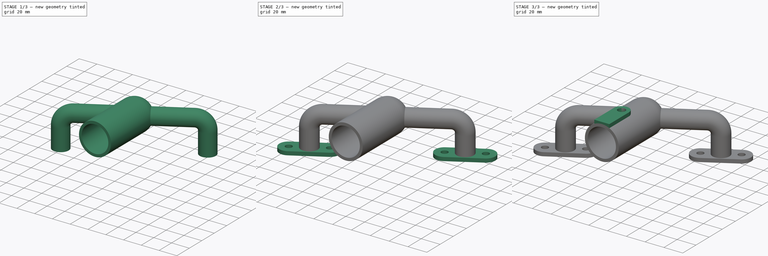
[diagram: build sequence overview — one tinted view per stage of 3, left to right]
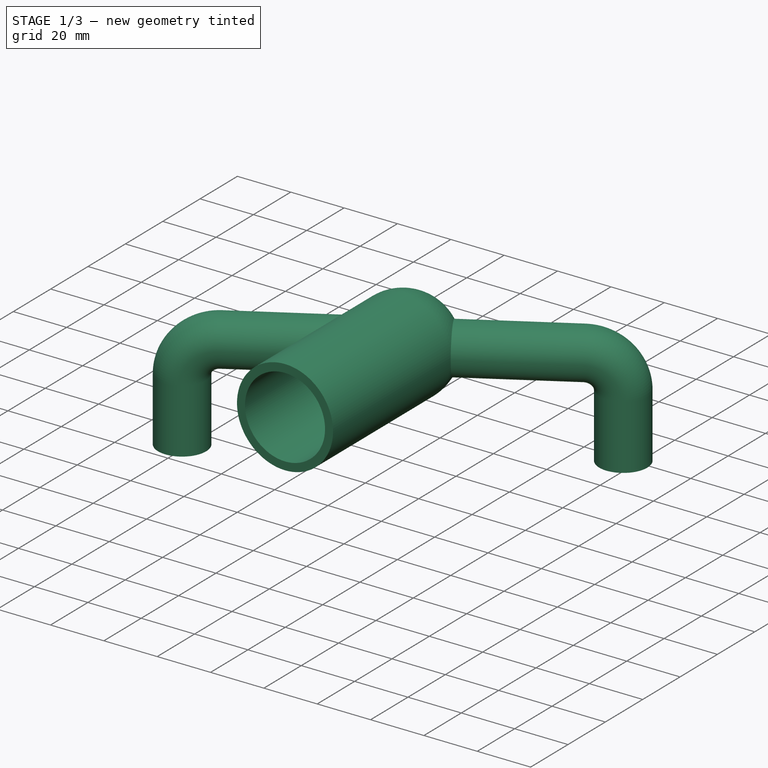
[diagram: stage 1 of 3 — iso view after this stage's code; geometry added in this stage tinted green]
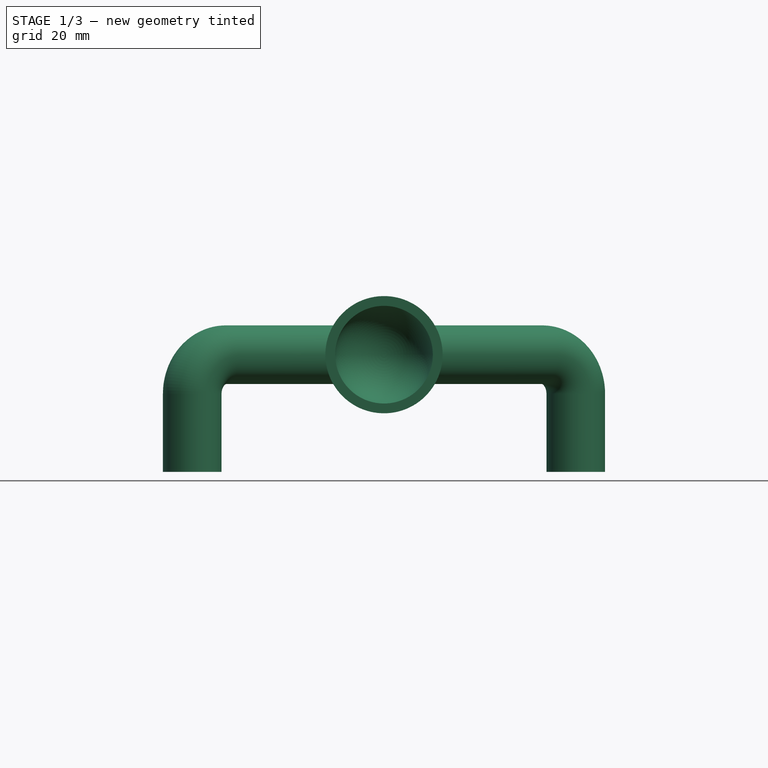
[diagram: stage 1 of 3 — front view after this stage's code; geometry added in this stage tinted green]
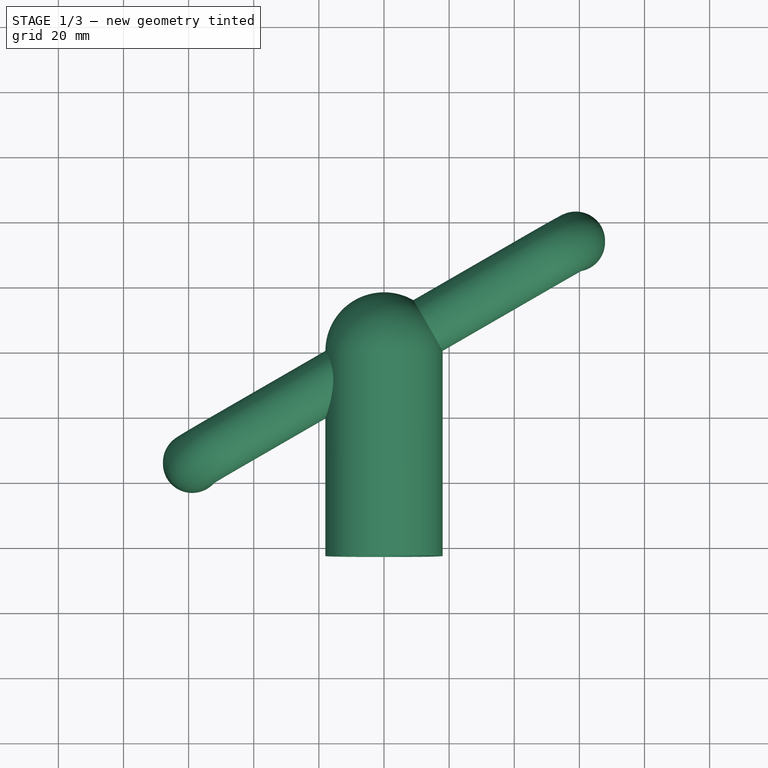
[diagram: stage 1 of 3 — top view after this stage's code; geometry added in this stage tinted green]
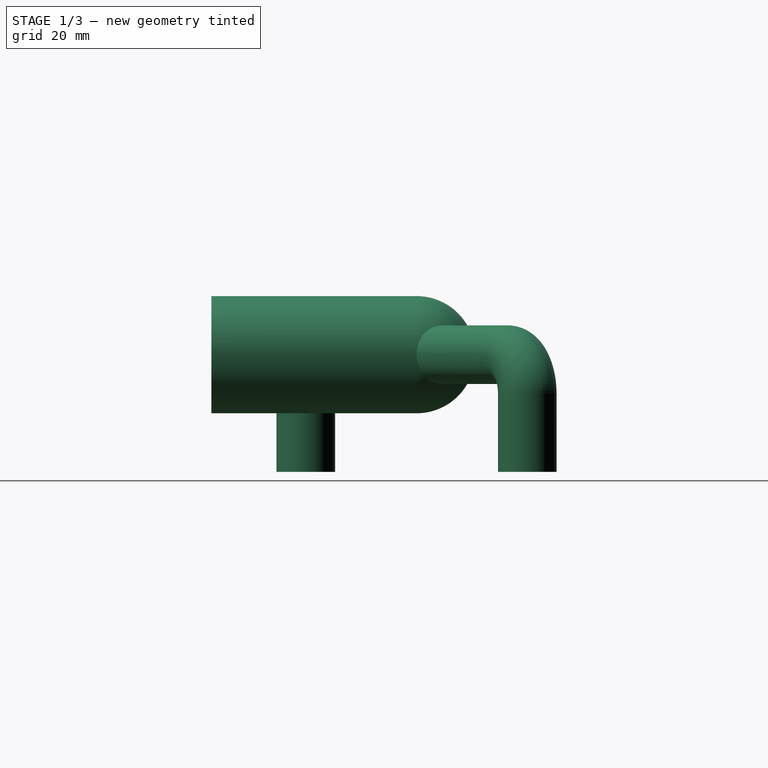
[diagram: stage 1 of 3 — right view after this stage's code; geometry added in this stage tinted green]
FCSTD DOCUMENT  (FreeCAD 0.21R33771 (Git))
Label: ex22
License: All rights reserved
LicenseURL: https://en.wikipedia.org/wiki/All_rights_reserved
objects: Sketcher::SketchObject×8, PartDesign::Pad×2, PartDesign::Plane×2, PartDesign::AdditivePipe×1, PartDesign::Revolution×1, PartDesign::Groove×1, PartDesign::Mirrored×1, PartDesign::SubtractivePipe×1, PartDesign::Pocket×1, PartDesign::Body×1
note: 26 computed .brp shape members not serialized (recipe doc carries the construction recipe); baked Part::Feature solids carry a one-line shape summary decoded from their .brp

FEATURE [Sketcher::SketchObject] Sketch
  AttachmentOffset = pos=(0,0,0) rot=(0,1,0;0.523599rad)
  FullyConstrained = true
  MapMode = 5
  Placement = pos=(0,0,0) rot=(0.935113,0.250563,0.250563;1.63783rad)
  Support = -> [XZ_Plane]
  sketch-geometry (5):
    g0: LineSegment StartX=-68 StartY=-36 StartZ=0 EndX=-68 EndY=-12 EndZ=0
    g1: LineSegment StartX=-56 StartY=0 StartZ=0 EndX=56 EndY=0 EndZ=0
    g2: LineSegment StartX=68 StartY=-12 StartZ=0 EndX=68 EndY=-36 EndZ=0
    g3: ArcOfCircle CenterX=-56 CenterY=-12 CenterZ=0 NormalX=0 NormalY=0 NormalZ=1 AngleXU=0 Radius=12 StartAngle=1.5708 EndAngle=3.14159
    g4: ArcOfCircle CenterX=56 CenterY=-12 CenterZ=0 NormalX=0 NormalY=0 NormalZ=1 AngleXU=0 Radius=12 StartAngle=0 EndAngle=1.5708
  constraints (13):
    c: Vertical(g0)
    c: Vertical(g2)
    c: Tangent(g0,g3) = 1.5708
    c: Tangent(g1,g3) = 1.5708
    c: Tangent(g1,g4) = 1.5708
    c: Tangent(g2,g4) = 1.5708
    c: Equal(g4,g3)
    c: Diameter(g4) = 24
    c: Tangent(g1,g-1)
    c: Equal(g0,g2)
    c: Symmetric(g1,g1,g-2)
    c: Distance(g0,g2) = 136
    c: DistanceY(g0,g1) = 36
FEATURE [Sketcher::SketchObject] Sketch001
  AttachmentOffset = pos=(0,0,0) rot=(0,1,0;-1.0472rad)
  FullyConstrained = true
  MapMode = 5
  Placement = pos=(0,0,0) rot=(-0.774597,0.447214,0.447214;4.45971rad)
  Support = -> [XZ_Plane]
  sketch-geometry (1):
    g0: Circle CenterX=0 CenterY=0 CenterZ=0 NormalX=0 NormalY=0 NormalZ=1 AngleXU=0 Radius=9
  constraints (2):
    c: Coincident(g0,g-1)
    c: Diameter(g0) = 18
FEATURE [PartDesign::AdditivePipe] AdditivePipe
  AuxilleryCurvelinear = true
  AuxillerySpineTangent = false
  Binormal = (0,0,0)
  Mode = 0
  Placement = pos=(0,0,0) rot=(1,0,0;1.5708rad)
  Profile = -> Sketch001
  Spine = -> Sketch
  SpineTangent = false
  Transformation = 0
  Transition = 0
FEATURE [Sketcher::SketchObject] Sketch002
  FullyConstrained = true
  MapMode = 5
  Support = -> [XY_Plane]
  sketch-geometry (4):
    g0: ArcOfCircle CenterX=0 CenterY=0 CenterZ=0 NormalX=0 NormalY=0 NormalZ=1 AngleXU=0 Radius=18 StartAngle=0 EndAngle=1.5708
    g1: LineSegment StartX=18 StartY=0 StartZ=0 EndX=18 EndY=-63 EndZ=0
    g2: LineSegment StartX=1.1e-15 StartY=18 StartZ=0 EndX=0 EndY=-63 EndZ=0
    g3: LineSegment StartX=0 StartY=-63 StartZ=0 EndX=18 EndY=-63 EndZ=0
  constraints (12):
    c: PointOnObject(g0,g-2)
    c: Coincident(g1,g0)
    c: Vertical(g1)
    c: Coincident(g0,g-1)
    c: PointOnObject(g0,g-1)
    c: Coincident(g0,g2)
    c: Coincident(g2,g3)
    c: Coincident(g3,g1)
    c: Horizontal(g3)
    c: DistanceX(g3,g3) = 18
    c: PointOnObject(g2,g-2)
    c: DistanceY(g2,g2) = 81
FEATURE [PartDesign::Revolution] Revolution
  Angle = 360
  Axis = (0,1,0)
  Base = (0,0,0)
  BaseFeature = -> AdditivePipe
  Placement = pos=(0,0,0) rot=(1,0,0;1.5708rad)
  Profile = -> Sketch002
  ReferenceAxis = -> Sketch002 [V_Axis]
  Reversed = true
FEATURE [Sketcher::SketchObject] Sketch003
  FullyConstrained = true
  MapMode = 5
  Support = -> [XY_Plane]
  sketch-geometry (4):
    g0: ArcOfCircle CenterX=0 CenterY=0 CenterZ=0 NormalX=0 NormalY=0 NormalZ=1 AngleXU=0 Radius=15 StartAngle=0 EndAngle=1.5708
    g1: LineSegment StartX=15 StartY=0 StartZ=0 EndX=15 EndY=-63 EndZ=0
    g2: LineSegment StartX=15 StartY=-63 StartZ=0 EndX=0 EndY=-63 EndZ=0
    g3: LineSegment StartX=0 StartY=-63 StartZ=0 EndX=9e-16 EndY=15 EndZ=0
  constraints (11):
    c: Coincident(g0,g-1)
    c: PointOnObject(g0,g-2)
    c: PointOnObject(g0,g-1)
    c: Tangent(g0,g1) = 1.5708
    c: Coincident(g1,g2)
    c: PointOnObject(g2,g-2)
    c: Horizontal(g2)
    c: Coincident(g2,g3)
    c: Coincident(g3,g0)
    c: DistanceX(g2,g2) = 15
    c: DistanceY(g3,g3) = 78
FEATURE [PartDesign::Groove] Groove
  Angle = 360
  Axis = (0,1,0)
  Base = (0,0,0)
  BaseFeature = -> Revolution
  Placement = pos=(0,0,0) rot=(1,0,0;1.5708rad)
  Profile = -> Sketch003
  ReferenceAxis = -> Sketch003 [V_Axis]
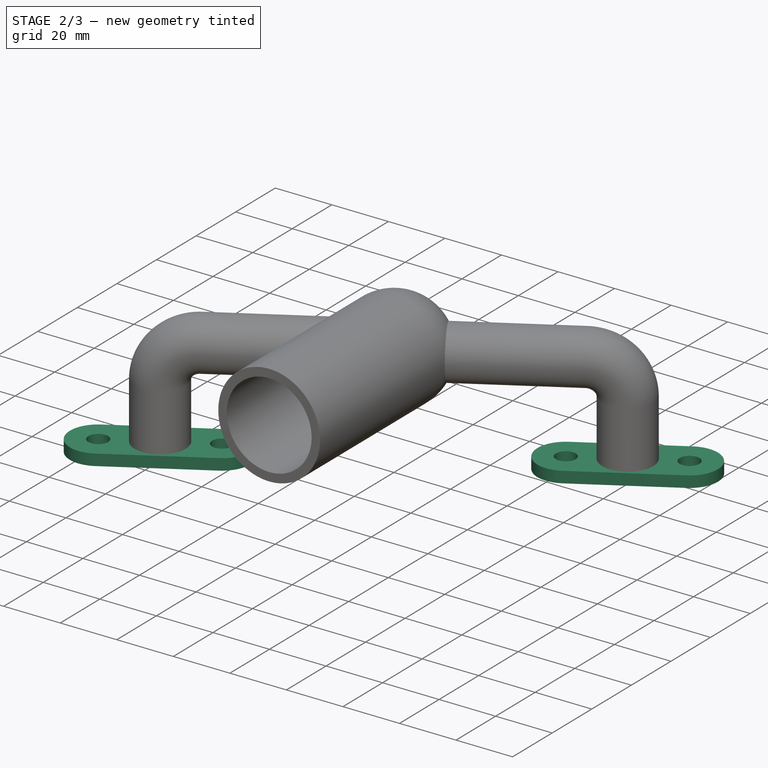
[diagram: stage 2 of 3 — iso view after this stage's code; geometry added in this stage tinted green]
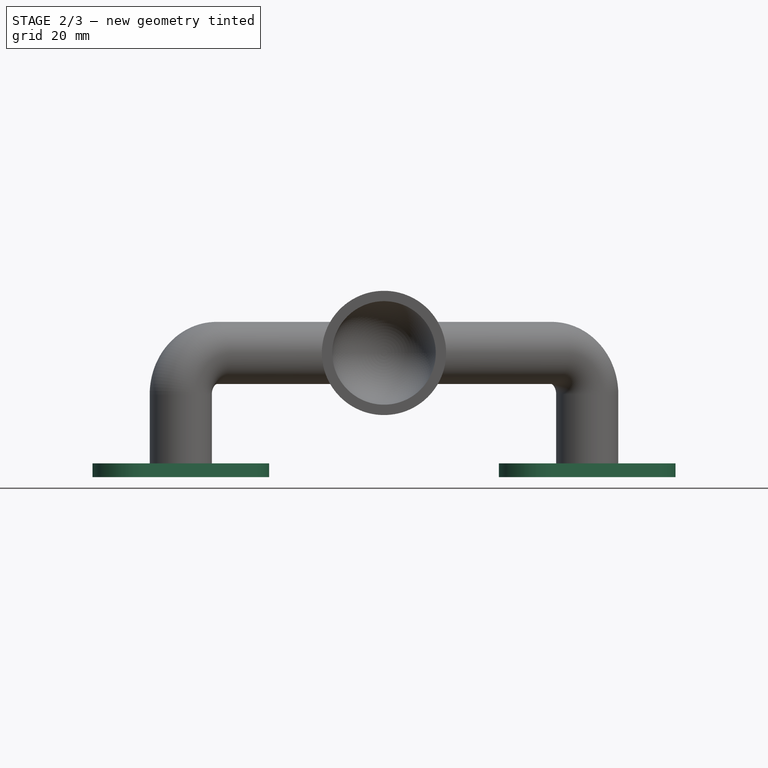
[diagram: stage 2 of 3 — front view after this stage's code; geometry added in this stage tinted green]
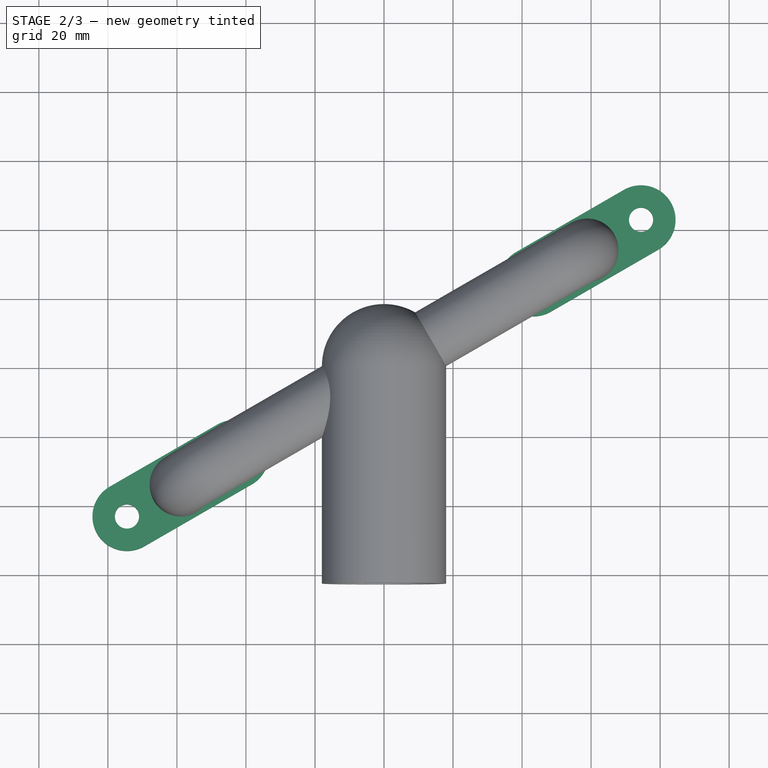
[diagram: stage 2 of 3 — top view after this stage's code; geometry added in this stage tinted green]
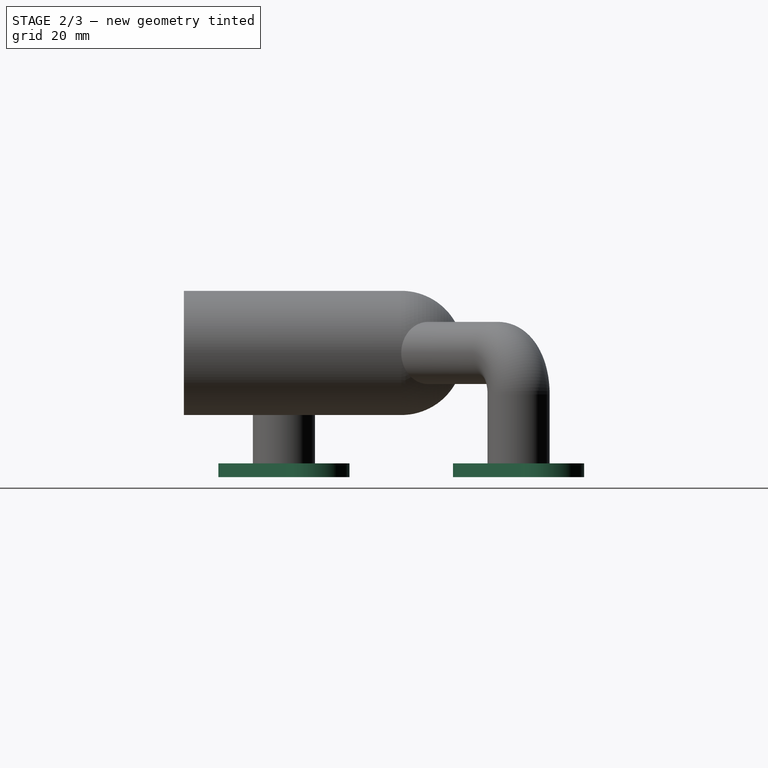
[diagram: stage 2 of 3 — right view after this stage's code; geometry added in this stage tinted green]
FEATURE [Sketcher::SketchObject] Sketch004
  ExternalGeometry = -> [Groove]
  FullyConstrained = false
  MapMode = 5
  Placement = pos=(0,8e-15,-36) rot=(1,0,0;3.14159rad)
  Support = -> [Groove]
  sketch-geometry (7):
    g0: ArcOfCircle CenterX=-74.4782 CenterY=43 CenterZ=0 NormalX=0 NormalY=0 NormalZ=1 AngleXU=0 Radius=10 StartAngle=1.0472 EndAngle=4.18879
    g1: ArcOfCircle CenterX=-43.3013 CenterY=25 CenterZ=0 NormalX=0 NormalY=0 NormalZ=1 AngleXU=0 Radius=10 StartAngle=4.18879 EndAngle=7.33038
    g2: LineSegment StartX=-79.4782 StartY=34.3397 StartZ=0 EndX=-48.3013 EndY=16.3397 EndZ=0
    g3: LineSegment StartX=-38.3013 StartY=33.6603 StartZ=0 EndX=-69.4782 EndY=51.6603 EndZ=0
    g4: LineSegment StartX=-103.673 StartY=59.8556 StartZ=0 EndX=78.4646 EndY=-45.3016 EndZ=0
    g5: Circle CenterX=-74.4782 CenterY=43 CenterZ=0 NormalX=0 NormalY=0 NormalZ=1 AngleXU=0 Radius=3.5
    g6: Circle CenterX=-43.3013 CenterY=25 CenterZ=0 NormalX=0 NormalY=0 NormalZ=1 AngleXU=0 Radius=3.5
  constraints (15):
    c: Tangent(g0,g2) = -1.5708
    c: Tangent(g2,g1) = -1.5708
    c: Tangent(g1,g3) = -1.5708
    c: Tangent(g3,g0) = -1.5708
    c: Equal(g0,g1)
    c: PointOnObject(g0,g4)
    c: PointOnObject(g1,g4)
    c: PointOnObject(g-3,g4)
    c: Symmetric(g0,g1,g-4)
    c: Distance(g0,g1) = 36
    c: Distance(g0,g0) = 20
    c: Coincident(g5,g0)
    c: Coincident(g6,g1)
    c: Equal(g6,g5)
    c: Diameter(g5) = 7
FEATURE [PartDesign::Pad] Pad
  BaseFeature = -> Groove
  Direction = (0,2e-16,-1)
  Length = 4
  Length2 = 10
  Placement = pos=(0,0,0) rot=(1,0,0;1.5708rad)
  Profile = -> Sketch004
  ReferenceAxis = -> Sketch004 [N_Axis]
  Reversed = true
  Type = 0
FEATURE [PartDesign::Plane] DatumPlane
  Length = 206.138
  MapMode = 2
  Placement = pos=(0,0,0) rot=(0.774597,-0.447214,-0.447214;1.82348rad)
  ResizeMode = 0
  Support = -> [Sketch001]
  Width = 82.2403
FEATURE [PartDesign::Mirrored] Mirrored
  BaseFeature = -> Pad
  MirrorPlane = -> DatumPlane
  Originals = -> [Pad]
  Placement = pos=(0,0,0) rot=(1,0,0;1.5708rad)
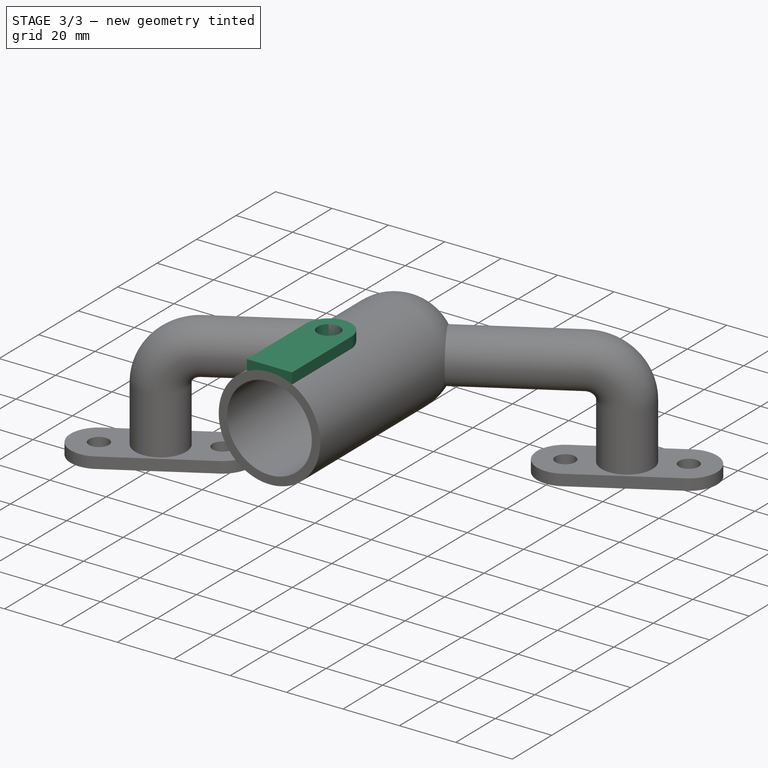
[diagram: stage 3 of 3 — iso view after this stage's code; geometry added in this stage tinted green]
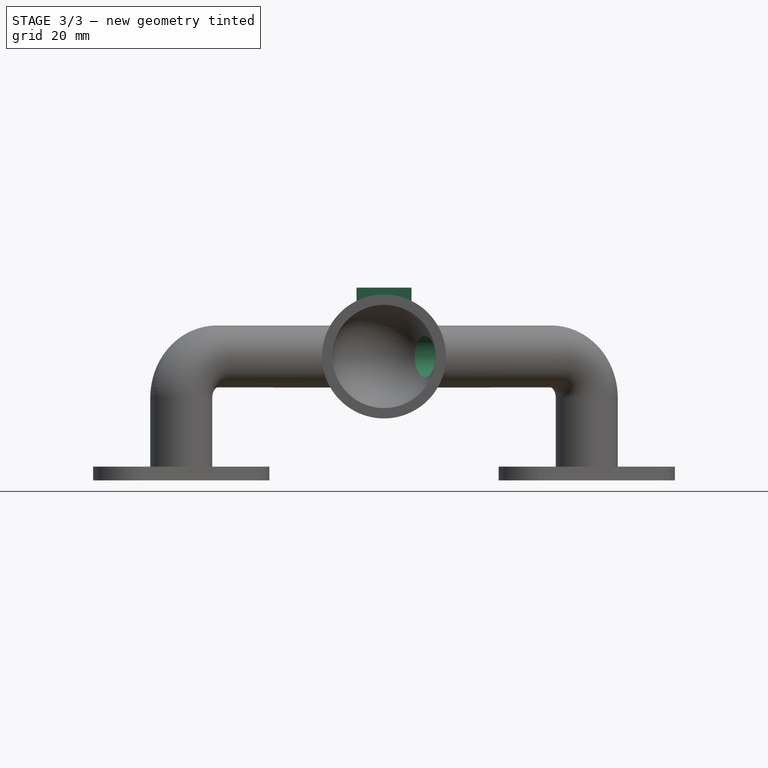
[diagram: stage 3 of 3 — front view after this stage's code; geometry added in this stage tinted green]
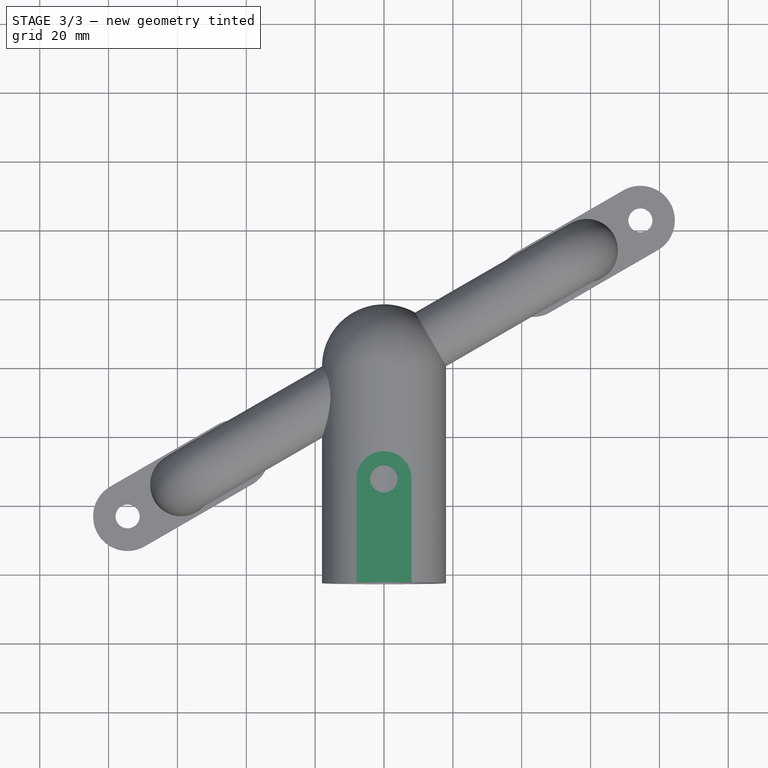
[diagram: stage 3 of 3 — top view after this stage's code; geometry added in this stage tinted green]
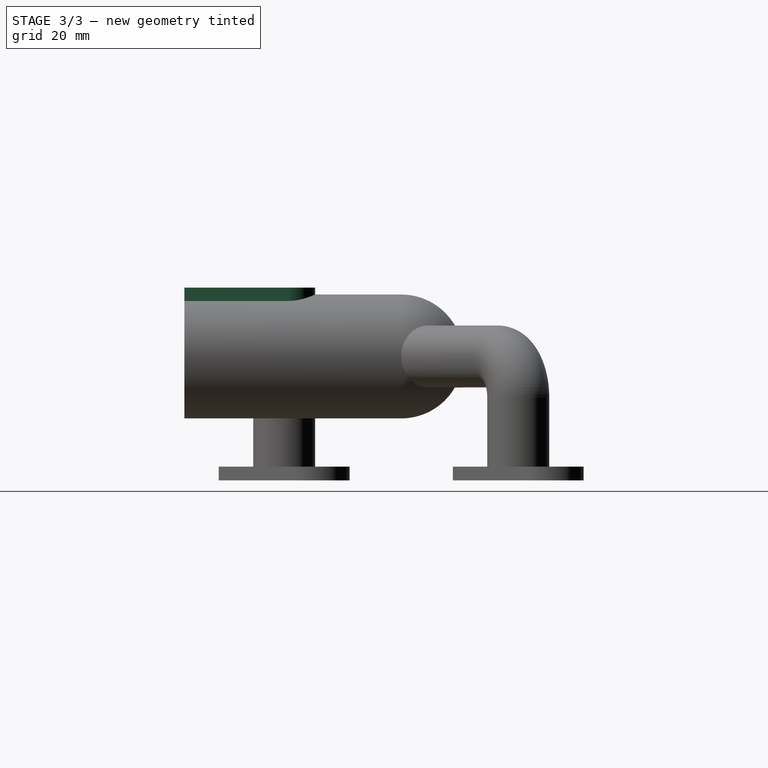
[diagram: stage 3 of 3 — right view after this stage's code; geometry added in this stage tinted green]
FEATURE [Sketcher::SketchObject] Sketch005
  ExternalGeometry = -> [Mirrored]
  FullyConstrained = true
  MapMode = 5
  Placement = pos=(-9.5e-15,-8.4e-15,-36) rot=(1,0,0;3.14159rad)
  Support = -> [Mirrored]
  sketch-geometry (1):
    g0: Circle CenterX=-58.8897 CenterY=34 CenterZ=0 NormalX=0 NormalY=0 NormalZ=1 AngleXU=0 Radius=6
  constraints (2):
    c: Coincident(g0,g-3)
    c: Diameter(g0) = 12
FEATURE [PartDesign::SubtractivePipe] SubtractivePipe
  AuxilleryCurvelinear = true
  AuxillerySpineTangent = false
  BaseFeature = -> Mirrored
  Binormal = (0,0,0)
  Mode = 0
  Placement = pos=(0,0,0) rot=(1,0,0;1.5708rad)
  Profile = -> Sketch005
  Refine = true
  Spine = -> Sketch
  SpineTangent = false
  Transformation = 0
  Transition = 0
FEATURE [PartDesign::Plane] DatumPlane001
  AttachmentOffset = pos=(0,0,20) rot=(0,0,1;0rad)
  Length = 196.884
  MapMode = 5
  Placement = pos=(0,0,20) rot=(0,0,1;0rad)
  ResizeMode = 0
  Support = -> [XY_Plane]
  Width = 143.985
FEATURE [Sketcher::SketchObject] Sketch006
  ExternalGeometry = -> [SubtractivePipe]
  FullyConstrained = true
  MapMode = 5
  Placement = pos=(0,0,20) rot=(0,0,1;0rad)
  Support = -> [DatumPlane001]
  sketch-geometry (5):
    g0: ArcOfCircle CenterX=0 CenterY=-33 CenterZ=0 NormalX=0 NormalY=0 NormalZ=1 AngleXU=0 Radius=8 StartAngle=2.31e-14 EndAngle=3.14159
    g1: ArcOfCircle CenterX=-3.46e-14 CenterY=-63 CenterZ=0 NormalX=0 NormalY=0 NormalZ=1 AngleXU=0 Radius=8 StartAngle=3.14159 EndAngle=6.28319
    g2: LineSegment StartX=-8 StartY=-33 StartZ=0 EndX=-8 EndY=-63 EndZ=0
    g3: LineSegment StartX=8 StartY=-63 StartZ=0 EndX=8 EndY=-33 EndZ=0
    g4: LineSegment StartX=-8 StartY=-63 StartZ=0 EndX=8 EndY=-63 EndZ=0
  constraints (12):
    c: Tangent(g0,g2) = -1.5708
    c: Tangent(g2,g1) = -1.5708
    c: Tangent(g1,g3) = -1.5708
    c: Tangent(g3,g0) = -1.5708
    c: Equal(g0,g1)
    c: PointOnObject(g0,g-2)
    c: Vertical(g2)
    c: PointOnObject(g1,g-3)
    c: Coincident(g4,g2)
    c: Coincident(g4,g3)
    c: DistanceX(g4,g4) = 16
    c: Distance(g0,g-3) = 30
FEATURE [PartDesign::Pad] Pad001
  BaseFeature = -> SubtractivePipe
  Direction = (0,0,1)
  Length = 6
  Length2 = 10
  Placement = pos=(0,0,0) rot=(1,0,0;1.5708rad)
  Profile = -> Sketch006
  ReferenceAxis = -> Sketch006 [N_Axis]
  Reversed = true
  Type = 3
  UpToFace = -> SubtractivePipe [Face7]
FEATURE [Sketcher::SketchObject] Sketch007
  ExternalGeometry = -> [Pad001]
  FullyConstrained = true
  MapMode = 5
  Placement = pos=(0,0,20) rot=(0,0,1;3.14159rad)
  Support = -> [Pad001]
  sketch-geometry (1):
    g0: Circle CenterX=0 CenterY=33 CenterZ=0 NormalX=0 NormalY=0 NormalZ=1 AngleXU=0 Radius=4
  constraints (2):
    c: Coincident(g0,g-3)
    c: Diameter(g0) = 8
FEATURE [PartDesign::Pocket] Pocket
  BaseFeature = -> Pad001
  Direction = (0,0,-1)
  Length = 10
  Length2 = 5
  Placement = pos=(0,0,0) rot=(1,0,0;1.5708rad)
  Profile = -> Sketch007
  ReferenceAxis = -> Sketch007 [N_Axis]
  Type = 0
FEATURE [PartDesign::Body] Body
  Group = -> [Sketch,Sketch001,AdditivePipe,Sketch002,Revolution,Sketch003,Groove,Sketch004,Pad,DatumPlane,Mirrored,Sketch005,SubtractivePipe,DatumPlane001,Sketch006,Pad001,Sketch007,Pocket]
  Origin = -> Origin
  Tip = -> Pocket
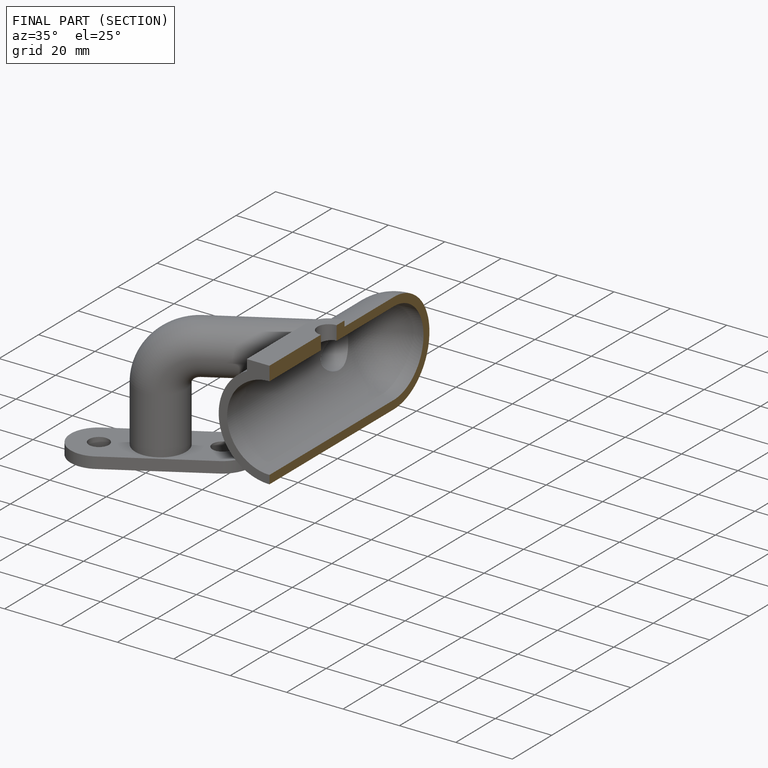
[diagram: finished part — half-section view (interior)]
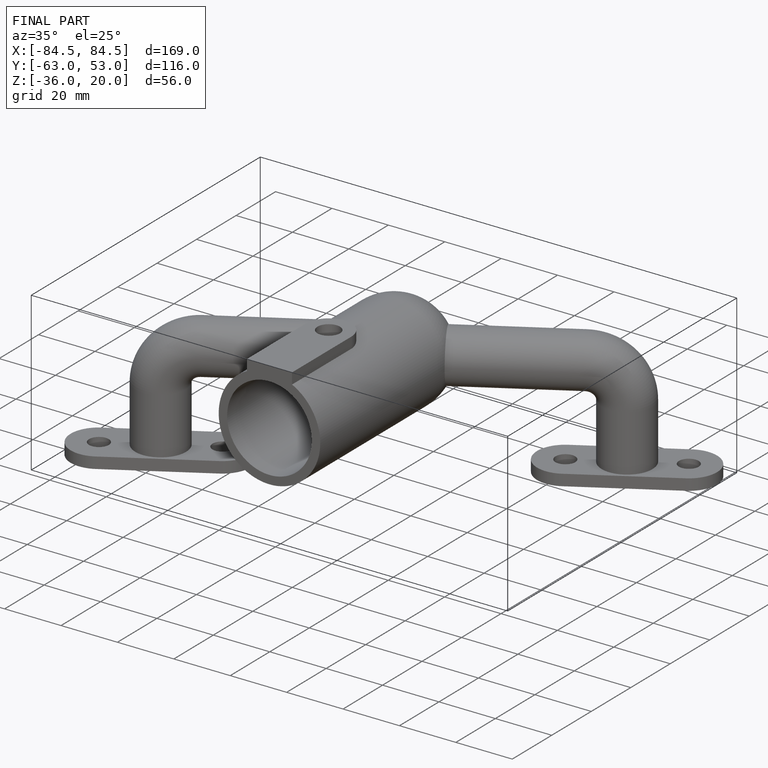
[diagram: finished part — iso view with bounding-box wireframe]
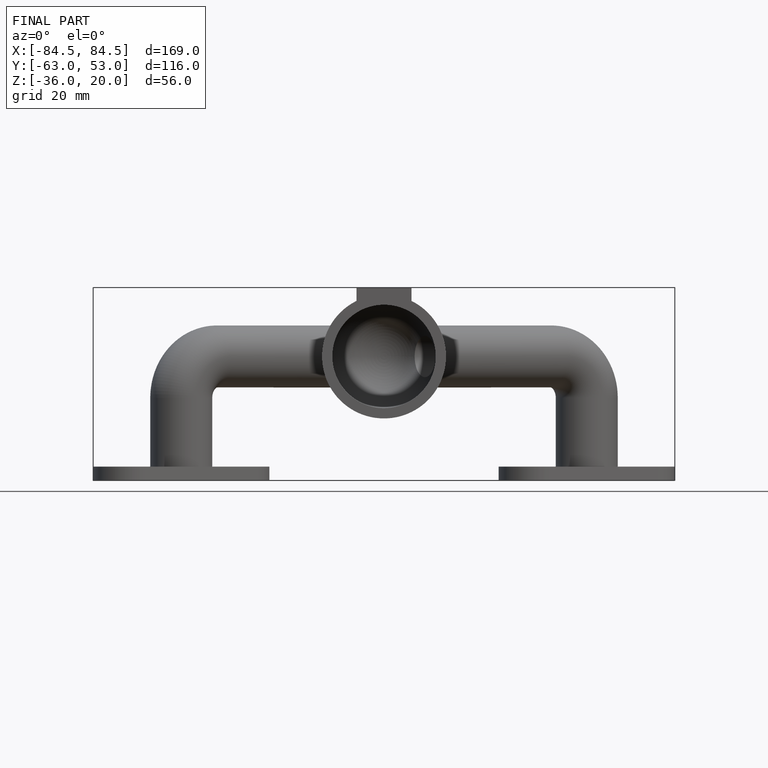
[diagram: finished part — front view with bounding-box wireframe]
